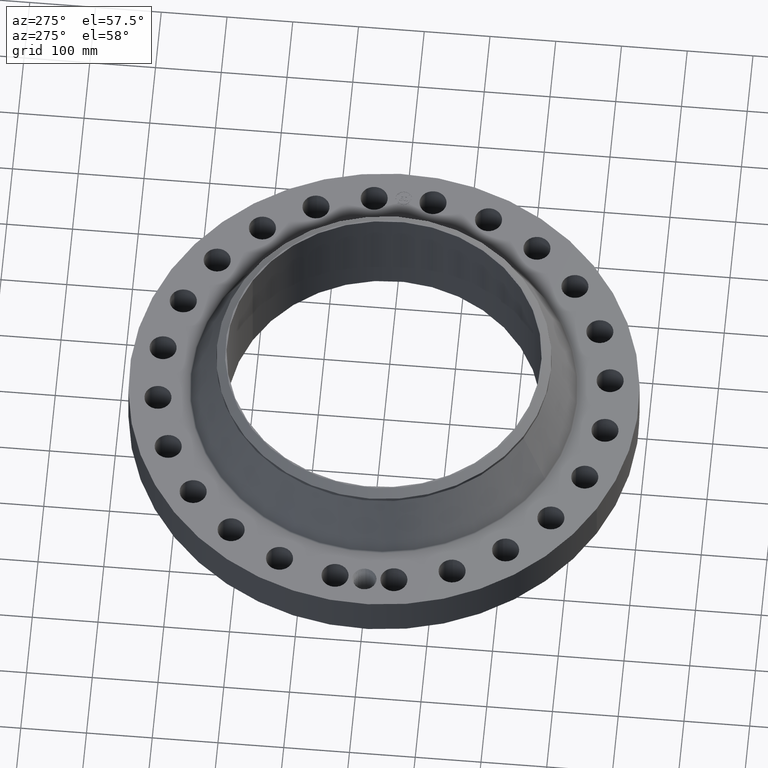
[diagram: clean part render]
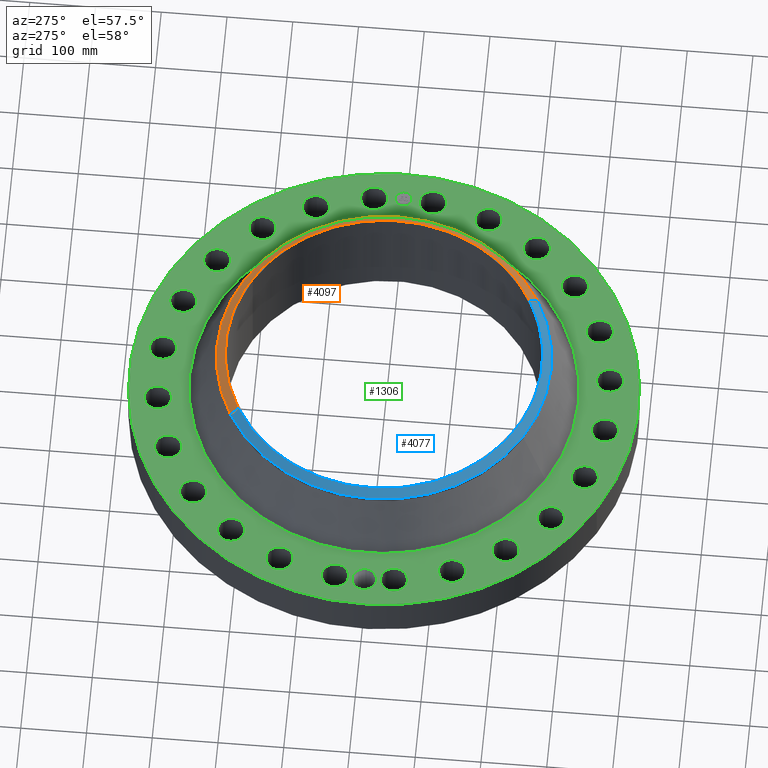
[diagram: same view with three faces highlighted in distinct colors, each labeled with its STEP entity id]
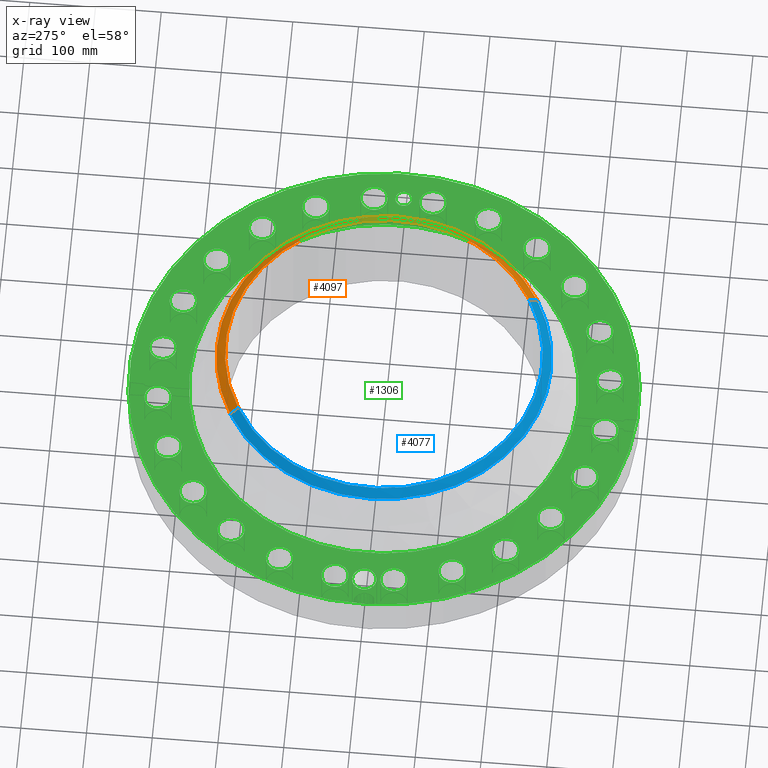
[diagram: x-ray of the same camera — body ghosted, the three highlighted faces saturated]
A machine part, auxiliary view with three faces highlighted in distinct colors.
The next image is the same camera in x-ray (body ghosted, the three faces saturated) — at least one of them is partly hidden behind the body in this view.
Their STEP definitions:

[orange] entity #4097 — the highlighted conical surface has half-angle 52.5 deg.
#3216=AXIS2_PLACEMENT_3D('Circle Axis2P3D',#3214,#3215,$) ;
#4042=AXIS2_PLACEMENT_3D('Cone Axis2P3D',#4039,#4040,#4041) ;
#4080=AXIS2_PLACEMENT_3D('Circle Axis2P3D',#4078,#4079,$) ;
#4087=AXIS2_PLACEMENT_3D('Circle Axis2P3D',#4085,#4086,$) ;
#3214=CARTESIAN_POINT('Axis2P3D Location',(0.,0.,6.87000000003)) ;
#3218=CARTESIAN_POINT('Vertex',(4.54722665854,-8.3236425663,6.87000000003)) ;
#3220=CARTESIAN_POINT('Vertex',(-4.54722665854,8.3236425663,6.87000000003)) ;
#4039=CARTESIAN_POINT('Axis2P3D Location',(0.,0.,6.87000000003)) ;
#4044=CARTESIAN_POINT('Line Origine',(4.6707410223,-8.54973409262,6.67231360853)) ;
#4048=CARTESIAN_POINT('Vertex',(4.79425538606,-8.77582561894,6.47462721704)) ;
#4051=CARTESIAN_POINT('Line Origine',(-4.6707410223,8.54973409262,6.67231360853)) ;
#4055=CARTESIAN_POINT('Vertex',(-4.79425538606,8.77582561894,6.47462721704)) ;
#4078=CARTESIAN_POINT('Axis2P3D Location',(0.,0.,6.47462721704)) ;
#4082=CARTESIAN_POINT('Vertex',(4.79425538606,8.77582561894,6.47462721704)) ;
#4085=CARTESIAN_POINT('Axis2P3D Location',(0.,0.,6.47462721704)) ;
#3215=DIRECTION('Axis2P3D Direction',(0.,0.,-0.0393700787402)) ;
#4040=DIRECTION('Axis2P3D Direction',(-0.,-0.,-0.0393700787402)) ;
#4041=DIRECTION('Axis2P3D XDirection',(-0.0188750212049,0.0345504945626,0.)) ;
#4045=DIRECTION('Vector Direction',(0.014974561121,-0.02741075027,-0.023966985394)) ;
#4052=DIRECTION('Vector Direction',(-0.014974561121,0.02741075027,-0.023966985394)) ;
#4079=DIRECTION('Axis2P3D Direction',(0.,0.,-0.0393700787402)) ;
#4086=DIRECTION('Axis2P3D Direction',(0.,0.,-0.0393700787402)) ;
#4046=VECTOR('Line Direction',#4045,0.0393700787402) ;
#4053=VECTOR('Line Direction',#4052,0.0393700787402) ;
#4091=ORIENTED_EDGE('',*,*,#4057,.F.) ;
#4092=ORIENTED_EDGE('',*,*,#3222,.F.) ;
#4093=ORIENTED_EDGE('',*,*,#4050,.T.) ;
#4094=ORIENTED_EDGE('',*,*,#4084,.T.) ;
#4095=ORIENTED_EDGE('',*,*,#4089,.F.) ;
#4097=ADVANCED_FACE('PartBody',(#4096),#4043,.T.) ;
#3217=CIRCLE('generated circle',#3216,9.48474015752) ;
#4081=CIRCLE('generated circle',#4080,10.) ;
#4088=CIRCLE('generated circle',#4087,10.) ;
#4043=CONICAL_SURFACE('Cone',#4042,9.48474015752,0.916297857297) ;
#3222=EDGE_CURVE('',#3219,#3221,#3217,.F.) ;
#4050=EDGE_CURVE('',#3219,#4049,#4047,.T.) ;
#4057=EDGE_CURVE('',#3221,#4056,#4054,.T.) ;
#4084=EDGE_CURVE('',#4049,#4083,#4081,.F.) ;
#4089=EDGE_CURVE('',#4056,#4083,#4088,.T.) ;
#4090=EDGE_LOOP('',(#4091,#4092,#4093,#4094,#4095)) ;
#4096=FACE_OUTER_BOUND('',#4090,.T.) ;
#4047=LINE('Line',#4044,#4046) ;
#4054=LINE('Line',#4051,#4053) ;
#3219=VERTEX_POINT('',#3218) ;
#3221=VERTEX_POINT('',#3220) ;
#4049=VERTEX_POINT('',#4048) ;
#4056=VERTEX_POINT('',#4055) ;
#4083=VERTEX_POINT('',#4082) ;

[blue] entity #4077 — the highlighted conical surface has half-angle 52.5 deg.
#3225=AXIS2_PLACEMENT_3D('Circle Axis2P3D',#3223,#3224,$) ;
#4042=AXIS2_PLACEMENT_3D('Cone Axis2P3D',#4039,#4040,#4041) ;
#4060=AXIS2_PLACEMENT_3D('Circle Axis2P3D',#4058,#4059,$) ;
#4067=AXIS2_PLACEMENT_3D('Circle Axis2P3D',#4065,#4066,$) ;
#3218=CARTESIAN_POINT('Vertex',(4.54722665854,-8.3236425663,6.87000000003)) ;
#3220=CARTESIAN_POINT('Vertex',(-4.54722665854,8.3236425663,6.87000000003)) ;
#3223=CARTESIAN_POINT('Axis2P3D Location',(0.,0.,6.87000000003)) ;
#4039=CARTESIAN_POINT('Axis2P3D Location',(0.,0.,6.87000000003)) ;
#4044=CARTESIAN_POINT('Line Origine',(4.6707410223,-8.54973409262,6.67231360853)) ;
#4048=CARTESIAN_POINT('Vertex',(4.79425538606,-8.77582561894,6.47462721704)) ;
#4051=CARTESIAN_POINT('Line Origine',(-4.6707410223,8.54973409262,6.67231360853)) ;
#4055=CARTESIAN_POINT('Vertex',(-4.79425538606,8.77582561894,6.47462721704)) ;
#4058=CARTESIAN_POINT('Axis2P3D Location',(0.,0.,6.47462721704)) ;
#4062=CARTESIAN_POINT('Vertex',(-4.79425538606,-8.77582561894,6.47462721704)) ;
#4065=CARTESIAN_POINT('Axis2P3D Location',(0.,0.,6.47462721704)) ;
#3224=DIRECTION('Axis2P3D Direction',(0.,0.,-0.0393700787402)) ;
#4040=DIRECTION('Axis2P3D Direction',(-0.,-0.,-0.0393700787402)) ;
#4041=DIRECTION('Axis2P3D XDirection',(-0.0188750212049,0.0345504945626,0.)) ;
#4045=DIRECTION('Vector Direction',(0.014974561121,-0.02741075027,-0.023966985394)) ;
#4052=DIRECTION('Vector Direction',(-0.014974561121,0.02741075027,-0.023966985394)) ;
#4059=DIRECTION('Axis2P3D Direction',(0.,0.,-0.0393700787402)) ;
#4066=DIRECTION('Axis2P3D Direction',(0.,0.,-0.0393700787402)) ;
#4046=VECTOR('Line Direction',#4045,0.0393700787402) ;
#4053=VECTOR('Line Direction',#4052,0.0393700787402) ;
#4071=ORIENTED_EDGE('',*,*,#4050,.F.) ;
#4072=ORIENTED_EDGE('',*,*,#3227,.F.) ;
#4073=ORIENTED_EDGE('',*,*,#4057,.T.) ;
#4074=ORIENTED_EDGE('',*,*,#4064,.T.) ;
#4075=ORIENTED_EDGE('',*,*,#4069,.F.) ;
#4077=ADVANCED_FACE('PartBody',(#4076),#4043,.T.) ;
#3226=CIRCLE('generated circle',#3225,9.48474015752) ;
#4061=CIRCLE('generated circle',#4060,10.) ;
#4068=CIRCLE('generated circle',#4067,10.) ;
#4043=CONICAL_SURFACE('Cone',#4042,9.48474015752,0.916297857297) ;
#3227=EDGE_CURVE('',#3221,#3219,#3226,.F.) ;
#4050=EDGE_CURVE('',#3219,#4049,#4047,.T.) ;
#4057=EDGE_CURVE('',#3221,#4056,#4054,.T.) ;
#4064=EDGE_CURVE('',#4056,#4063,#4061,.F.) ;
#4069=EDGE_CURVE('',#4049,#4063,#4068,.T.) ;
#4070=EDGE_LOOP('',(#4071,#4072,#4073,#4074,#4075)) ;
#4076=FACE_OUTER_BOUND('',#4070,.T.) ;
#4047=LINE('Line',#4044,#4046) ;
#4054=LINE('Line',#4051,#4053) ;
#3219=VERTEX_POINT('',#3218) ;
#3221=VERTEX_POINT('',#3220) ;
#4049=VERTEX_POINT('',#4048) ;
#4056=VERTEX_POINT('',#4055) ;
#4063=VERTEX_POINT('',#4062) ;

[green] entity #1306 — the highlighted planar face has unit normal (0, 0, -1).
#58=AXIS2_PLACEMENT_3D('Circle Axis2P3D',#56,#57,$) ;
#686=AXIS2_PLACEMENT_3D('Circle Axis2P3D',#684,#685,$) ;
#786=AXIS2_PLACEMENT_3D('Plane Axis2P3D',#783,#784,#785) ;
#822=AXIS2_PLACEMENT_3D('Circle Axis2P3D',#820,#821,$) ;
#829=AXIS2_PLACEMENT_3D('Circle Axis2P3D',#827,#828,$) ;
#840=AXIS2_PLACEMENT_3D('Circle Axis2P3D',#838,#839,$) ;
#849=AXIS2_PLACEMENT_3D('Circle Axis2P3D',#847,#848,$) ;
#858=AXIS2_PLACEMENT_3D('Circle Axis2P3D',#856,#857,$) ;
#867=AXIS2_PLACEMENT_3D('Circle Axis2P3D',#865,#866,$) ;
#876=AXIS2_PLACEMENT_3D('Circle Axis2P3D',#874,#875,$) ;
#885=AXIS2_PLACEMENT_3D('Circle Axis2P3D',#883,#884,$) ;
#894=AXIS2_PLACEMENT_3D('Circle Axis2P3D',#892,#893,$) ;
#903=AXIS2_PLACEMENT_3D('Circle Axis2P3D',#901,#902,$) ;
#912=AXIS2_PLACEMENT_3D('Circle Axis2P3D',#910,#911,$) ;
#921=AXIS2_PLACEMENT_3D('Circle Axis2P3D',#919,#920,$) ;
#930=AXIS2_PLACEMENT_3D('Circle Axis2P3D',#928,#929,$) ;
#939=AXIS2_PLACEMENT_3D('Circle Axis2P3D',#937,#938,$) ;
#948=AXIS2_PLACEMENT_3D('Circle Axis2P3D',#946,#947,$) ;
#957=AXIS2_PLACEMENT_3D('Circle Axis2P3D',#955,#956,$) ;
#966=AXIS2_PLACEMENT_3D('Circle Axis2P3D',#964,#965,$) ;
#975=AXIS2_PLACEMENT_3D('Circle Axis2P3D',#973,#974,$) ;
#984=AXIS2_PLACEMENT_3D('Circle Axis2P3D',#982,#983,$) ;
#993=AXIS2_PLACEMENT_3D('Circle Axis2P3D',#991,#992,$) ;
#1002=AXIS2_PLACEMENT_3D('Circle Axis2P3D',#1000,#1001,$) ;
#1011=AXIS2_PLACEMENT_3D('Circle Axis2P3D',#1009,#1010,$) ;
#1020=AXIS2_PLACEMENT_3D('Circle Axis2P3D',#1018,#1019,$) ;
#1029=AXIS2_PLACEMENT_3D('Circle Axis2P3D',#1027,#1028,$) ;
#1038=AXIS2_PLACEMENT_3D('Circle Axis2P3D',#1036,#1037,$) ;
#1047=AXIS2_PLACEMENT_3D('Circle Axis2P3D',#1045,#1046,$) ;
#1056=AXIS2_PLACEMENT_3D('Circle Axis2P3D',#1054,#1055,$) ;
#1065=AXIS2_PLACEMENT_3D('Circle Axis2P3D',#1063,#1064,$) ;
#1074=AXIS2_PLACEMENT_3D('Circle Axis2P3D',#1072,#1073,$) ;
#1083=AXIS2_PLACEMENT_3D('Circle Axis2P3D',#1081,#1082,$) ;
#1092=AXIS2_PLACEMENT_3D('Circle Axis2P3D',#1090,#1091,$) ;
#1101=AXIS2_PLACEMENT_3D('Circle Axis2P3D',#1099,#1100,$) ;
#1110=AXIS2_PLACEMENT_3D('Circle Axis2P3D',#1108,#1109,$) ;
#1119=AXIS2_PLACEMENT_3D('Circle Axis2P3D',#1117,#1118,$) ;
#1128=AXIS2_PLACEMENT_3D('Circle Axis2P3D',#1126,#1127,$) ;
#1137=AXIS2_PLACEMENT_3D('Circle Axis2P3D',#1135,#1136,$) ;
#1146=AXIS2_PLACEMENT_3D('Circle Axis2P3D',#1144,#1145,$) ;
#1155=AXIS2_PLACEMENT_3D('Circle Axis2P3D',#1153,#1154,$) ;
#1164=AXIS2_PLACEMENT_3D('Circle Axis2P3D',#1162,#1163,$) ;
#1173=AXIS2_PLACEMENT_3D('Circle Axis2P3D',#1171,#1172,$) ;
#1182=AXIS2_PLACEMENT_3D('Circle Axis2P3D',#1180,#1181,$) ;
#1191=AXIS2_PLACEMENT_3D('Circle Axis2P3D',#1189,#1190,$) ;
#1200=AXIS2_PLACEMENT_3D('Circle Axis2P3D',#1198,#1199,$) ;
#1209=AXIS2_PLACEMENT_3D('Circle Axis2P3D',#1207,#1208,$) ;
#1218=AXIS2_PLACEMENT_3D('Circle Axis2P3D',#1216,#1217,$) ;
#1227=AXIS2_PLACEMENT_3D('Circle Axis2P3D',#1225,#1226,$) ;
#1236=AXIS2_PLACEMENT_3D('Circle Axis2P3D',#1234,#1235,$) ;
#1245=AXIS2_PLACEMENT_3D('Circle Axis2P3D',#1243,#1244,$) ;
#1254=AXIS2_PLACEMENT_3D('Circle Axis2P3D',#1252,#1253,$) ;
#1263=AXIS2_PLACEMENT_3D('Circle Axis2P3D',#1261,#1262,$) ;
#1272=AXIS2_PLACEMENT_3D('Circle Axis2P3D',#1270,#1271,$) ;
#1281=AXIS2_PLACEMENT_3D('Circle Axis2P3D',#1279,#1280,$) ;
#1290=AXIS2_PLACEMENT_3D('Circle Axis2P3D',#1288,#1289,$) ;
#1299=AXIS2_PLACEMENT_3D('Circle Axis2P3D',#1297,#1298,$) ;
#53=CARTESIAN_POINT('Vertex',(-7.31123946374,-13.3831340689,3.00000000001)) ;
#56=CARTESIAN_POINT('Axis2P3D Location',(0.,0.,3.00000000001)) ;
#60=CARTESIAN_POINT('Vertex',(7.31123946374,13.3831340689,3.00000000001)) ;
#684=CARTESIAN_POINT('Axis2P3D Location',(0.,0.,3.00000000001)) ;
#783=CARTESIAN_POINT('Axis2P3D Location',(0.,15.2500000001,3.00000000001)) ;
#793=CARTESIAN_POINT('Control Point',(-12.7500000001,-2.23792987641E-015,3.00000000001)) ;
#794=CARTESIAN_POINT('Control Point',(-12.7522636554,0.0673684368516,3.00000000001)) ;
#795=CARTESIAN_POINT('Control Point',(-12.7620959627,0.134362451198,3.00000000001)) ;
#796=CARTESIAN_POINT('Control Point',(-12.779443189,0.199837593452,3.00000000001)) ;
#797=CARTESIAN_POINT('Control Point',(-12.8185043411,0.299840833798,3.00000000001)) ;
#798=CARTESIAN_POINT('Control Point',(-12.8743969936,0.390606345988,3.00000000001)) ;
#799=CARTESIAN_POINT('Control Point',(-12.8973886211,0.422865792682,3.00000000001)) ;
#800=CARTESIAN_POINT('Control Point',(-12.9224511221,0.453448918407,3.00000000001)) ;
#801=CARTESIAN_POINT('Control Point',(-12.9494191804,0.4821843803,3.00000000001)) ;
#802=CARTESIAN_POINT('Vertex',(-12.7500000001,-2.23792987641E-015,3.00000000001)) ;
#804=CARTESIAN_POINT('Vertex',(-12.9494191804,0.4821843803,3.00000000001)) ;
#808=CARTESIAN_POINT('Control Point',(-12.7500000001,0.,3.00000000001)) ;
#809=CARTESIAN_POINT('Control Point',(-12.7522642723,-0.0673867948276,3.00000000001)) ;
#810=CARTESIAN_POINT('Control Point',(-12.7621012981,-0.134398965041,3.00000000001)) ;
#811=CARTESIAN_POINT('Control Point',(-12.7794475726,-0.199869118488,3.00000000001)) ;
#812=CARTESIAN_POINT('Control Point',(-12.8185243821,-0.299912177351,3.00000000001)) ;
#813=CARTESIAN_POINT('Control Point',(-12.8744144436,-0.390660980928,3.00000000001)) ;
#814=CARTESIAN_POINT('Control Point',(-12.8974350804,-0.42294916695,3.00000000001)) ;
#815=CARTESIAN_POINT('Control Point',(-12.9225255534,-0.453551391386,3.00000000001)) ;
#816=CARTESIAN_POINT('Control Point',(-12.9495190389,-0.482298379648,3.00000000001)) ;
#817=CARTESIAN_POINT('Vertex',(-12.9495190389,-0.482298379648,3.00000000001)) ;
#820=CARTESIAN_POINT('Axis2P3D Location',(-13.5000000001,-1.1189649382E-014,3.00000000001)) ;
#824=CARTESIAN_POINT('Vertex',(-14.1422807375,0.350879566067,3.00000000001)) ;
#827=CARTESIAN_POINT('Axis2P3D Location',(-13.5000000001,-1.1189649382E-014,3.00000000001)) ;
#838=CARTESIAN_POINT('Axis2P3D Location',(13.3845056286,-1.76210359498,3.00000000001)) ;
#842=CARTESIAN_POINT('Vertex',(12.6736637535,-1.37376890871,3.00000000001)) ;
#844=CARTESIAN_POINT('Vertex',(14.0953475037,-2.15043828125,3.00000000001)) ;
#847=CARTESIAN_POINT('Axis2P3D Location',(13.3845056286,-1.76210359498,3.00000000001)) ;
#856=CARTESIAN_POINT('Axis2P3D Location',(0.,0.,3.00000000001)) ;
#860=CARTESIAN_POINT('Vertex',(-5.57830370885,-10.211016447,3.00000000001)) ;
#862=CARTESIAN_POINT('Vertex',(5.57830370885,10.211016447,3.00000000001)) ;
#865=CARTESIAN_POINT('Axis2P3D Location',(0.,0.,3.00000000001)) ;
#874=CARTESIAN_POINT('Axis2P3D Location',(12.472373689,-5.16622633695,3.00000000001)) ;
#878=CARTESIAN_POINT('Vertex',(13.0584858019,-5.725308255,3.00000000001)) ;
#880=CARTESIAN_POINT('Vertex',(11.886261576,-4.6071444189,3.00000000001)) ;
#883=CARTESIAN_POINT('Axis2P3D Location',(12.472373689,-5.16622633695,3.00000000001)) ;
#892=CARTESIAN_POINT('Axis2P3D Location',(10.710270094,-8.21827929165,3.00000000001)) ;
#896=CARTESIAN_POINT('Vertex',(11.1317098728,-8.9100079327,3.00000000001)) ;
#898=CARTESIAN_POINT('Vertex',(10.2888303152,-7.5265506506,3.00000000001)) ;
#901=CARTESIAN_POINT('Axis2P3D Location',(10.710270094,-8.21827929165,3.00000000001)) ;
#910=CARTESIAN_POINT('Axis2P3D Location',(8.21827929165,-10.710270094,3.00000000001)) ;
#914=CARTESIAN_POINT('Vertex',(8.44632631188,-11.4875052943,3.00000000001)) ;
#916=CARTESIAN_POINT('Vertex',(7.99023227142,-9.93303489368,3.00000000001)) ;
#919=CARTESIAN_POINT('Axis2P3D Location',(8.21827929165,-10.710270094,3.00000000001)) ;
#928=CARTESIAN_POINT('Axis2P3D Location',(5.16622633695,-12.472373689,3.00000000001)) ;
#932=CARTESIAN_POINT('Vertex',(5.18533957104,-13.282148154,3.00000000001)) ;
#934=CARTESIAN_POINT('Vertex',(5.14711310286,-11.6625992239,3.00000000001)) ;
#937=CARTESIAN_POINT('Axis2P3D Location',(5.16622633695,-12.472373689,3.00000000001)) ;
#946=CARTESIAN_POINT('Axis2P3D Location',(1.76210359498,-13.3845056286,3.00000000001)) ;
#950=CARTESIAN_POINT('Vertex',(1.57098050761,-14.1716345669,3.00000000001)) ;
#952=CARTESIAN_POINT('Vertex',(1.95322668235,-12.5973766903,3.00000000001)) ;
#955=CARTESIAN_POINT('Axis2P3D Location',(1.76210359498,-13.3845056286,3.00000000001)) ;
#964=CARTESIAN_POINT('Axis2P3D Location',(-1.76210359498,-13.3845056286,3.00000000001)) ;
#968=CARTESIAN_POINT('Vertex',(-2.15043828125,-14.0953475037,3.00000000001)) ;
#970=CARTESIAN_POINT('Vertex',(-1.37376890871,-12.6736637535,3.00000000001)) ;
#973=CARTESIAN_POINT('Axis2P3D Location',(-1.76210359498,-13.3845056286,3.00000000001)) ;
#982=CARTESIAN_POINT('Axis2P3D Location',(-5.16622633695,-12.472373689,3.00000000001)) ;
#986=CARTESIAN_POINT('Vertex',(-5.725308255,-13.0584858019,3.00000000001)) ;
#988=CARTESIAN_POINT('Vertex',(-4.6071444189,-11.886261576,3.00000000001)) ;
#991=CARTESIAN_POINT('Axis2P3D Location',(-5.16622633695,-12.472373689,3.00000000001)) ;
#1000=CARTESIAN_POINT('Axis2P3D Location',(-8.21827929165,-10.710270094,3.00000000001)) ;
#1004=CARTESIAN_POINT('Vertex',(-8.9100079327,-11.1317098728,3.00000000001)) ;
#1006=CARTESIAN_POINT('Vertex',(-7.5265506506,-10.2888303152,3.00000000001)) ;
#1009=CARTESIAN_POINT('Axis2P3D Location',(-8.21827929165,-10.710270094,3.00000000001)) ;
#1018=CARTESIAN_POINT('Axis2P3D Location',(-10.710270094,-8.21827929165,3.00000000001)) ;
#1022=CARTESIAN_POINT('Vertex',(-11.4875052943,-8.44632631188,3.00000000001)) ;
#1024=CARTESIAN_POINT('Vertex',(-9.93303489368,-7.99023227142,3.00000000001)) ;
#1027=CARTESIAN_POINT('Axis2P3D Location',(-10.710270094,-8.21827929165,3.00000000001)) ;
#1036=CARTESIAN_POINT('Axis2P3D Location',(-12.472373689,-5.16622633695,3.00000000001)) ;
#1040=CARTESIAN_POINT('Vertex',(-13.282148154,-5.18533957104,3.00000000001)) ;
#1042=CARTESIAN_POINT('Vertex',(-11.6625992239,-5.14711310286,3.00000000001)) ;
#1045=CARTESIAN_POINT('Axis2P3D Location',(-12.472373689,-5.16622633695,3.00000000001)) ;
#1054=CARTESIAN_POINT('Axis2P3D Location',(-13.3845056286,-1.76210359498,3.00000000001)) ;
#1058=CARTESIAN_POINT('Vertex',(-14.1716345669,-1.57098050761,3.00000000001)) ;
#1060=CARTESIAN_POINT('Vertex',(-12.5973766903,-1.95322668235,3.00000000001)) ;
#1063=CARTESIAN_POINT('Axis2P3D Location',(-13.3845056286,-1.76210359498,3.00000000001)) ;
#1072=CARTESIAN_POINT('Axis2P3D Location',(-13.3845056286,1.76210359498,3.00000000001)) ;
#1076=CARTESIAN_POINT('Vertex',(-14.0953475037,2.15043828125,3.00000000001)) ;
#1078=CARTESIAN_POINT('Vertex',(-12.6736637535,1.37376890871,3.00000000001)) ;
#1081=CARTESIAN_POINT('Axis2P3D Location',(-13.3845056286,1.76210359498,3.00000000001)) ;
#1090=CARTESIAN_POINT('Axis2P3D Location',(-12.472373689,5.16622633695,3.00000000001)) ;
#1094=CARTESIAN_POINT('Vertex',(-13.0584858019,5.725308255,3.00000000001)) ;
#1096=CARTESIAN_POINT('Vertex',(-11.886261576,4.6071444189,3.00000000001)) ;
#1099=CARTESIAN_POINT('Axis2P3D Location',(-12.472373689,5.16622633695,3.00000000001)) ;
#1108=CARTESIAN_POINT('Axis2P3D Location',(-10.710270094,8.21827929165,3.00000000001)) ;
#1112=CARTESIAN_POINT('Vertex',(-11.1317098728,8.9100079327,3.00000000001)) ;
#1114=CARTESIAN_POINT('Vertex',(-10.2888303152,7.5265506506,3.00000000001)) ;
#1117=CARTESIAN_POINT('Axis2P3D Location',(-10.710270094,8.21827929165,3.00000000001)) ;
#1126=CARTESIAN_POINT('Axis2P3D Location',(-8.21827929165,10.710270094,3.00000000001)) ;
#1130=CARTESIAN_POINT('Vertex',(-8.44632631188,11.4875052943,3.00000000001)) ;
#1132=CARTESIAN_POINT('Vertex',(-7.99023227142,9.93303489368,3.00000000001)) ;
#1135=CARTESIAN_POINT('Axis2P3D Location',(-8.21827929165,10.710270094,3.00000000001)) ;
#1144=CARTESIAN_POINT('Axis2P3D Location',(-5.16622633695,12.472373689,3.00000000001)) ;
#1148=CARTESIAN_POINT('Vertex',(-5.18533957104,13.282148154,3.00000000001)) ;
#1150=CARTESIAN_POINT('Vertex',(-5.14711310286,11.6625992239,3.00000000001)) ;
#1153=CARTESIAN_POINT('Axis2P3D Location',(-5.16622633695,12.472373689,3.00000000001)) ;
#1162=CARTESIAN_POINT('Axis2P3D Location',(-1.76210359498,13.3845056286,3.00000000001)) ;
#1166=CARTESIAN_POINT('Vertex',(-1.57098050761,14.1716345669,3.00000000001)) ;
#1168=CARTESIAN_POINT('Vertex',(-1.95322668235,12.5973766903,3.00000000001)) ;
#1171=CARTESIAN_POINT('Axis2P3D Location',(-1.76210359498,13.3845056286,3.00000000001)) ;
#1180=CARTESIAN_POINT('Axis2P3D Location',(1.76210359498,13.3845056286,3.00000000001)) ;
#1184=CARTESIAN_POINT('Vertex',(2.15043828125,14.0953475037,3.00000000001)) ;
#1186=CARTESIAN_POINT('Vertex',(1.37376890871,12.6736637535,3.00000000001)) ;
#1189=CARTESIAN_POINT('Axis2P3D Location',(1.76210359498,13.3845056286,3.00000000001)) ;
#1198=CARTESIAN_POINT('Axis2P3D Location',(5.16622633695,12.472373689,3.00000000001)) ;
#1202=CARTESIAN_POINT('Vertex',(5.725308255,13.0584858019,3.00000000001)) ;
#1204=CARTESIAN_POINT('Vertex',(4.6071444189,11.886261576,3.00000000001)) ;
#1207=CARTESIAN_POINT('Axis2P3D Location',(5.16622633695,12.472373689,3.00000000001)) ;
#1216=CARTESIAN_POINT('Axis2P3D Location',(8.21827929165,10.710270094,3.00000000001)) ;
#1220=CARTESIAN_POINT('Vertex',(8.9100079327,11.1317098728,3.00000000001)) ;
#1222=CARTESIAN_POINT('Vertex',(7.5265506506,10.2888303152,3.00000000001)) ;
#1225=CARTESIAN_POINT('Axis2P3D Location',(8.21827929165,10.710270094,3.00000000001)) ;
#1234=CARTESIAN_POINT('Axis2P3D Location',(10.710270094,8.21827929165,3.00000000001)) ;
#1238=CARTESIAN_POINT('Vertex',(11.4875052943,8.44632631188,3.00000000001)) ;
#1240=CARTESIAN_POINT('Vertex',(9.93303489368,7.99023227142,3.00000000001)) ;
#1243=CARTESIAN_POINT('Axis2P3D Location',(10.710270094,8.21827929165,3.00000000001)) ;
#1252=CARTESIAN_POINT('Axis2P3D Location',(12.472373689,5.16622633695,3.00000000001)) ;
#1256=CARTESIAN_POINT('Vertex',(13.282148154,5.18533957104,3.00000000001)) ;
#1258=CARTESIAN_POINT('Vertex',(11.6625992239,5.14711310286,3.00000000001)) ;
#1261=CARTESIAN_POINT('Axis2P3D Location',(12.472373689,5.16622633695,3.00000000001)) ;
#1270=CARTESIAN_POINT('Axis2P3D Location',(13.3845056286,1.76210359498,3.00000000001)) ;
#1274=CARTESIAN_POINT('Vertex',(14.1716345669,1.57098050761,3.00000000001)) ;
#1276=CARTESIAN_POINT('Vertex',(12.5973766903,1.95322668235,3.00000000001)) ;
#1279=CARTESIAN_POINT('Axis2P3D Location',(13.3845056286,1.76210359498,3.00000000001)) ;
#1288=CARTESIAN_POINT('Axis2P3D Location',(13.5000000001,0.,3.00000000001)) ;
#1292=CARTESIAN_POINT('Vertex',(13.5000000001,0.499999995002,3.00000000001)) ;
#1294=CARTESIAN_POINT('Vertex',(13.5000000001,-0.499999995002,3.00000000001)) ;
#1297=CARTESIAN_POINT('Axis2P3D Location',(13.5000000001,0.,3.00000000001)) ;
#57=DIRECTION('Axis2P3D Direction',(0.,0.,-0.0393700787402)) ;
#685=DIRECTION('Axis2P3D Direction',(0.,0.,-0.0393700787402)) ;
#784=DIRECTION('Axis2P3D Direction',(0.,0.,-0.0393700787402)) ;
#785=DIRECTION('Axis2P3D XDirection',(0.0393700787402,0.,0.)) ;
#821=DIRECTION('Axis2P3D Direction',(0.,0.,-0.0393700787402)) ;
#828=DIRECTION('Axis2P3D Direction',(0.,0.,-0.0393700787402)) ;
#839=DIRECTION('Axis2P3D Direction',(0.,0.,-0.0393700787402)) ;
#848=DIRECTION('Axis2P3D Direction',(0.,0.,-0.0393700787402)) ;
#857=DIRECTION('Axis2P3D Direction',(0.,0.,-0.0393700787402)) ;
#866=DIRECTION('Axis2P3D Direction',(0.,0.,-0.0393700787402)) ;
#875=DIRECTION('Axis2P3D Direction',(0.,0.,-0.0393700787402)) ;
#884=DIRECTION('Axis2P3D Direction',(0.,0.,-0.0393700787402)) ;
#893=DIRECTION('Axis2P3D Direction',(0.,0.,-0.0393700787402)) ;
#902=DIRECTION('Axis2P3D Direction',(0.,0.,-0.0393700787402)) ;
#911=DIRECTION('Axis2P3D Direction',(0.,0.,-0.0393700787402)) ;
#920=DIRECTION('Axis2P3D Direction',(0.,0.,-0.0393700787402)) ;
#929=DIRECTION('Axis2P3D Direction',(0.,0.,-0.0393700787402)) ;
#938=DIRECTION('Axis2P3D Direction',(0.,0.,-0.0393700787402)) ;
#947=DIRECTION('Axis2P3D Direction',(0.,0.,-0.0393700787402)) ;
#956=DIRECTION('Axis2P3D Direction',(0.,0.,-0.0393700787402)) ;
#965=DIRECTION('Axis2P3D Direction',(0.,0.,-0.0393700787402)) ;
#974=DIRECTION('Axis2P3D Direction',(0.,0.,-0.0393700787402)) ;
#983=DIRECTION('Axis2P3D Direction',(0.,0.,-0.0393700787402)) ;
#992=DIRECTION('Axis2P3D Direction',(0.,0.,-0.0393700787402)) ;
#1001=DIRECTION('Axis2P3D Direction',(0.,0.,-0.0393700787402)) ;
#1010=DIRECTION('Axis2P3D Direction',(0.,0.,-0.0393700787402)) ;
#1019=DIRECTION('Axis2P3D Direction',(0.,0.,-0.0393700787402)) ;
#1028=DIRECTION('Axis2P3D Direction',(0.,0.,-0.0393700787402)) ;
#1037=DIRECTION('Axis2P3D Direction',(0.,0.,-0.0393700787402)) ;
#1046=DIRECTION('Axis2P3D Direction',(0.,0.,-0.0393700787402)) ;
#1055=DIRECTION('Axis2P3D Direction',(0.,0.,-0.0393700787402)) ;
#1064=DIRECTION('Axis2P3D Direction',(0.,0.,-0.0393700787402)) ;
#1073=DIRECTION('Axis2P3D Direction',(0.,0.,-0.0393700787402)) ;
#1082=DIRECTION('Axis2P3D Direction',(0.,0.,-0.0393700787402)) ;
#1091=DIRECTION('Axis2P3D Direction',(0.,0.,-0.0393700787402)) ;
#1100=DIRECTION('Axis2P3D Direction',(0.,0.,-0.0393700787402)) ;
#1109=DIRECTION('Axis2P3D Direction',(0.,0.,-0.0393700787402)) ;
#1118=DIRECTION('Axis2P3D Direction',(0.,0.,-0.0393700787402)) ;
#1127=DIRECTION('Axis2P3D Direction',(0.,0.,-0.0393700787402)) ;
#1136=DIRECTION('Axis2P3D Direction',(0.,0.,-0.0393700787402)) ;
#1145=DIRECTION('Axis2P3D Direction',(0.,0.,-0.0393700787402)) ;
#1154=DIRECTION('Axis2P3D Direction',(0.,0.,-0.0393700787402)) ;
#1163=DIRECTION('Axis2P3D Direction',(0.,0.,-0.0393700787402)) ;
#1172=DIRECTION('Axis2P3D Direction',(0.,0.,-0.0393700787402)) ;
#1181=DIRECTION('Axis2P3D Direction',(0.,0.,-0.0393700787402)) ;
#1190=DIRECTION('Axis2P3D Direction',(0.,0.,-0.0393700787402)) ;
#1199=DIRECTION('Axis2P3D Direction',(0.,0.,-0.0393700787402)) ;
#1208=DIRECTION('Axis2P3D Direction',(0.,0.,-0.0393700787402)) ;
#1217=DIRECTION('Axis2P3D Direction',(0.,0.,-0.0393700787402)) ;
#1226=DIRECTION('Axis2P3D Direction',(0.,0.,-0.0393700787402)) ;
#1235=DIRECTION('Axis2P3D Direction',(0.,0.,-0.0393700787402)) ;
#1244=DIRECTION('Axis2P3D Direction',(0.,0.,-0.0393700787402)) ;
#1253=DIRECTION('Axis2P3D Direction',(0.,0.,-0.0393700787402)) ;
#1262=DIRECTION('Axis2P3D Direction',(0.,0.,-0.0393700787402)) ;
#1271=DIRECTION('Axis2P3D Direction',(0.,0.,-0.0393700787402)) ;
#1280=DIRECTION('Axis2P3D Direction',(0.,0.,-0.0393700787402)) ;
#1289=DIRECTION('Axis2P3D Direction',(0.,0.,-0.0393700787402)) ;
#1298=DIRECTION('Axis2P3D Direction',(0.,0.,-0.0393700787402)) ;
#789=ORIENTED_EDGE('',*,*,#688,.F.) ;
#790=ORIENTED_EDGE('',*,*,#62,.F.) ;
#833=ORIENTED_EDGE('',*,*,#806,.F.) ;
#834=ORIENTED_EDGE('',*,*,#819,.T.) ;
#835=ORIENTED_EDGE('',*,*,#826,.T.) ;
#836=ORIENTED_EDGE('',*,*,#831,.T.) ;
#853=ORIENTED_EDGE('',*,*,#846,.T.) ;
#854=ORIENTED_EDGE('',*,*,#851,.T.) ;
#871=ORIENTED_EDGE('',*,*,#864,.T.) ;
#872=ORIENTED_EDGE('',*,*,#869,.T.) ;
#889=ORIENTED_EDGE('',*,*,#882,.T.) ;
#890=ORIENTED_EDGE('',*,*,#887,.T.) ;
#907=ORIENTED_EDGE('',*,*,#900,.T.) ;
#908=ORIENTED_EDGE('',*,*,#905,.T.) ;
#925=ORIENTED_EDGE('',*,*,#918,.T.) ;
#926=ORIENTED_EDGE('',*,*,#923,.T.) ;
#943=ORIENTED_EDGE('',*,*,#936,.T.) ;
#944=ORIENTED_EDGE('',*,*,#941,.T.) ;
#961=ORIENTED_EDGE('',*,*,#954,.T.) ;
#962=ORIENTED_EDGE('',*,*,#959,.T.) ;
#979=ORIENTED_EDGE('',*,*,#972,.T.) ;
#980=ORIENTED_EDGE('',*,*,#977,.T.) ;
#997=ORIENTED_EDGE('',*,*,#990,.T.) ;
#998=ORIENTED_EDGE('',*,*,#995,.T.) ;
#1015=ORIENTED_EDGE('',*,*,#1008,.T.) ;
#1016=ORIENTED_EDGE('',*,*,#1013,.T.) ;
#1033=ORIENTED_EDGE('',*,*,#1026,.T.) ;
#1034=ORIENTED_EDGE('',*,*,#1031,.T.) ;
#1051=ORIENTED_EDGE('',*,*,#1044,.T.) ;
#1052=ORIENTED_EDGE('',*,*,#1049,.T.) ;
#1069=ORIENTED_EDGE('',*,*,#1062,.T.) ;
#1070=ORIENTED_EDGE('',*,*,#1067,.T.) ;
#1087=ORIENTED_EDGE('',*,*,#1080,.T.) ;
#1088=ORIENTED_EDGE('',*,*,#1085,.T.) ;
#1105=ORIENTED_EDGE('',*,*,#1098,.T.) ;
#1106=ORIENTED_EDGE('',*,*,#1103,.T.) ;
#1123=ORIENTED_EDGE('',*,*,#1116,.T.) ;
#1124=ORIENTED_EDGE('',*,*,#1121,.T.) ;
#1141=ORIENTED_EDGE('',*,*,#1134,.T.) ;
#1142=ORIENTED_EDGE('',*,*,#1139,.T.) ;
#1159=ORIENTED_EDGE('',*,*,#1152,.T.) ;
#1160=ORIENTED_EDGE('',*,*,#1157,.T.) ;
#1177=ORIENTED_EDGE('',*,*,#1170,.T.) ;
#1178=ORIENTED_EDGE('',*,*,#1175,.T.) ;
#1195=ORIENTED_EDGE('',*,*,#1188,.T.) ;
#1196=ORIENTED_EDGE('',*,*,#1193,.T.) ;
#1213=ORIENTED_EDGE('',*,*,#1206,.T.) ;
#1214=ORIENTED_EDGE('',*,*,#1211,.T.) ;
#1231=ORIENTED_EDGE('',*,*,#1224,.T.) ;
#1232=ORIENTED_EDGE('',*,*,#1229,.T.) ;
#1249=ORIENTED_EDGE('',*,*,#1242,.T.) ;
#1250=ORIENTED_EDGE('',*,*,#1247,.T.) ;
#1267=ORIENTED_EDGE('',*,*,#1260,.T.) ;
#1268=ORIENTED_EDGE('',*,*,#1265,.T.) ;
#1285=ORIENTED_EDGE('',*,*,#1278,.T.) ;
#1286=ORIENTED_EDGE('',*,*,#1283,.T.) ;
#1303=ORIENTED_EDGE('',*,*,#1296,.T.) ;
#1304=ORIENTED_EDGE('',*,*,#1301,.T.) ;
#837=FACE_BOUND('',#832,.T.) ;
#855=FACE_BOUND('',#852,.T.) ;
#873=FACE_BOUND('',#870,.T.) ;
#891=FACE_BOUND('',#888,.T.) ;
#909=FACE_BOUND('',#906,.T.) ;
#927=FACE_BOUND('',#924,.T.) ;
#945=FACE_BOUND('',#942,.T.) ;
#963=FACE_BOUND('',#960,.T.) ;
#981=FACE_BOUND('',#978,.T.) ;
#999=FACE_BOUND('',#996,.T.) ;
#1017=FACE_BOUND('',#1014,.T.) ;
#1035=FACE_BOUND('',#1032,.T.) ;
#1053=FACE_BOUND('',#1050,.T.) ;
#1071=FACE_BOUND('',#1068,.T.) ;
#1089=FACE_BOUND('',#1086,.T.) ;
#1107=FACE_BOUND('',#1104,.T.) ;
#1125=FACE_BOUND('',#1122,.T.) ;
#1143=FACE_BOUND('',#1140,.T.) ;
#1161=FACE_BOUND('',#1158,.T.) ;
#1179=FACE_BOUND('',#1176,.T.) ;
#1197=FACE_BOUND('',#1194,.T.) ;
#1215=FACE_BOUND('',#1212,.T.) ;
#1233=FACE_BOUND('',#1230,.T.) ;
#1251=FACE_BOUND('',#1248,.T.) ;
#1269=FACE_BOUND('',#1266,.T.) ;
#1287=FACE_BOUND('',#1284,.T.) ;
#1305=FACE_BOUND('',#1302,.T.) ;
#1306=ADVANCED_FACE('PartBody',(#791,#837,#855,#873,#891,#909,#927,#945,#963,#981,#999,#1017,#1035,#1053,#1071,#1089,#1107,#1125,#1143,#1161,#1179,#1197,#1215,#1233,#1251,#1269,#1287,#1305),#787,.F.) ;
#792=B_SPLINE_CURVE_WITH_KNOTS('',5,(#793,#794,#795,#796,#797,#798,#799,#800,#801),.UNSPECIFIED.,.F.,.U.,(6,3,6),(0.,11.8008760648,18.7839626093),.UNSPECIFIED.) ;
#807=B_SPLINE_CURVE_WITH_KNOTS('',5,(#808,#809,#810,#811,#812,#813,#814,#815,#816),.UNSPECIFIED.,.F.,.U.,(6,3,6),(0.,11.8040918171,18.8043456012),.UNSPECIFIED.) ;
#59=CIRCLE('generated circle',#58,15.2500000001) ;
#687=CIRCLE('generated circle',#686,15.2500000001) ;
#823=CIRCLE('generated circle',#822,0.731875000003) ;
#830=CIRCLE('generated circle',#829,0.731875000003) ;
#841=CIRCLE('generated circle',#840,0.810000000003) ;
#850=CIRCLE('generated circle',#849,0.810000000003) ;
#859=CIRCLE('generated circle',#858,11.6353912332) ;
#868=CIRCLE('generated circle',#867,11.6353912332) ;
#877=CIRCLE('generated circle',#876,0.810000000003) ;
#886=CIRCLE('generated circle',#885,0.810000000003) ;
#895=CIRCLE('generated circle',#894,0.810000000003) ;
#904=CIRCLE('generated circle',#903,0.810000000003) ;
#913=CIRCLE('generated circle',#912,0.810000000003) ;
#922=CIRCLE('generated circle',#921,0.810000000003) ;
#931=CIRCLE('generated circle',#930,0.810000000003) ;
#940=CIRCLE('generated circle',#939,0.810000000003) ;
#949=CIRCLE('generated circle',#948,0.810000000003) ;
#958=CIRCLE('generated circle',#957,0.810000000003) ;
#967=CIRCLE('generated circle',#966,0.810000000003) ;
#976=CIRCLE('generated circle',#975,0.810000000003) ;
#985=CIRCLE('generated circle',#984,0.810000000003) ;
#994=CIRCLE('generated circle',#993,0.810000000003) ;
#1003=CIRCLE('generated circle',#1002,0.810000000003) ;
#1012=CIRCLE('generated circle',#1011,0.810000000003) ;
#1021=CIRCLE('generated circle',#1020,0.810000000003) ;
#1030=CIRCLE('generated circle',#1029,0.810000000003) ;
#1039=CIRCLE('generated circle',#1038,0.810000000003) ;
#1048=CIRCLE('generated circle',#1047,0.810000000003) ;
#1057=CIRCLE('generated circle',#1056,0.810000000003) ;
#1066=CIRCLE('generated circle',#1065,0.810000000003) ;
#1075=CIRCLE('generated circle',#1074,0.810000000003) ;
#1084=CIRCLE('generated circle',#1083,0.810000000003) ;
#1093=CIRCLE('generated circle',#1092,0.810000000003) ;
#1102=CIRCLE('generated circle',#1101,0.810000000003) ;
#1111=CIRCLE('generated circle',#1110,0.810000000003) ;
#1120=CIRCLE('generated circle',#1119,0.810000000003) ;
#1129=CIRCLE('generated circle',#1128,0.810000000003) ;
#1138=CIRCLE('generated circle',#1137,0.810000000003) ;
#1147=CIRCLE('generated circle',#1146,0.810000000003) ;
#1156=CIRCLE('generated circle',#1155,0.810000000003) ;
#1165=CIRCLE('generated circle',#1164,0.810000000003) ;
#1174=CIRCLE('generated circle',#1173,0.810000000003) ;
#1183=CIRCLE('generated circle',#1182,0.810000000003) ;
#1192=CIRCLE('generated circle',#1191,0.810000000003) ;
#1201=CIRCLE('generated circle',#1200,0.810000000003) ;
#1210=CIRCLE('generated circle',#1209,0.810000000003) ;
#1219=CIRCLE('generated circle',#1218,0.810000000003) ;
#1228=CIRCLE('generated circle',#1227,0.810000000003) ;
#1237=CIRCLE('generated circle',#1236,0.810000000003) ;
#1246=CIRCLE('generated circle',#1245,0.810000000003) ;
#1255=CIRCLE('generated circle',#1254,0.810000000003) ;
#1264=CIRCLE('generated circle',#1263,0.810000000003) ;
#1273=CIRCLE('generated circle',#1272,0.810000000003) ;
#1282=CIRCLE('generated circle',#1281,0.810000000003) ;
#1291=CIRCLE('generated circle',#1290,0.499999995002) ;
#1300=CIRCLE('generated circle',#1299,0.499999995002) ;
#62=EDGE_CURVE('',#54,#61,#59,.T.) ;
#688=EDGE_CURVE('',#61,#54,#687,.T.) ;
#806=EDGE_CURVE('',#803,#805,#792,.T.) ;
#819=EDGE_CURVE('',#803,#818,#807,.T.) ;
#826=EDGE_CURVE('',#818,#825,#823,.T.) ;
#831=EDGE_CURVE('',#825,#805,#830,.T.) ;
#846=EDGE_CURVE('',#843,#845,#841,.T.) ;
#851=EDGE_CURVE('',#845,#843,#850,.T.) ;
#864=EDGE_CURVE('',#861,#863,#859,.T.) ;
#869=EDGE_CURVE('',#863,#861,#868,.T.) ;
#882=EDGE_CURVE('',#879,#881,#877,.T.) ;
#887=EDGE_CURVE('',#881,#879,#886,.T.) ;
#900=EDGE_CURVE('',#897,#899,#895,.T.) ;
#905=EDGE_CURVE('',#899,#897,#904,.T.) ;
#918=EDGE_CURVE('',#915,#917,#913,.T.) ;
#923=EDGE_CURVE('',#917,#915,#922,.T.) ;
#936=EDGE_CURVE('',#933,#935,#931,.T.) ;
#941=EDGE_CURVE('',#935,#933,#940,.T.) ;
#954=EDGE_CURVE('',#951,#953,#949,.T.) ;
#959=EDGE_CURVE('',#953,#951,#958,.T.) ;
#972=EDGE_CURVE('',#969,#971,#967,.T.) ;
#977=EDGE_CURVE('',#971,#969,#976,.T.) ;
#990=EDGE_CURVE('',#987,#989,#985,.T.) ;
#995=EDGE_CURVE('',#989,#987,#994,.T.) ;
#1008=EDGE_CURVE('',#1005,#1007,#1003,.T.) ;
#1013=EDGE_CURVE('',#1007,#1005,#1012,.T.) ;
#1026=EDGE_CURVE('',#1023,#1025,#1021,.T.) ;
#1031=EDGE_CURVE('',#1025,#1023,#1030,.T.) ;
#1044=EDGE_CURVE('',#1041,#1043,#1039,.T.) ;
#1049=EDGE_CURVE('',#1043,#1041,#1048,.T.) ;
#1062=EDGE_CURVE('',#1059,#1061,#1057,.T.) ;
#1067=EDGE_CURVE('',#1061,#1059,#1066,.T.) ;
#1080=EDGE_CURVE('',#1077,#1079,#1075,.T.) ;
#1085=EDGE_CURVE('',#1079,#1077,#1084,.T.) ;
#1098=EDGE_CURVE('',#1095,#1097,#1093,.T.) ;
#1103=EDGE_CURVE('',#1097,#1095,#1102,.T.) ;
#1116=EDGE_CURVE('',#1113,#1115,#1111,.T.) ;
#1121=EDGE_CURVE('',#1115,#1113,#1120,.T.) ;
#1134=EDGE_CURVE('',#1131,#1133,#1129,.T.) ;
#1139=EDGE_CURVE('',#1133,#1131,#1138,.T.) ;
#1152=EDGE_CURVE('',#1149,#1151,#1147,.T.) ;
#1157=EDGE_CURVE('',#1151,#1149,#1156,.T.) ;
#1170=EDGE_CURVE('',#1167,#1169,#1165,.T.) ;
#1175=EDGE_CURVE('',#1169,#1167,#1174,.T.) ;
#1188=EDGE_CURVE('',#1185,#1187,#1183,.T.) ;
#1193=EDGE_CURVE('',#1187,#1185,#1192,.T.) ;
#1206=EDGE_CURVE('',#1203,#1205,#1201,.T.) ;
#1211=EDGE_CURVE('',#1205,#1203,#1210,.T.) ;
#1224=EDGE_CURVE('',#1221,#1223,#1219,.T.) ;
#1229=EDGE_CURVE('',#1223,#1221,#1228,.T.) ;
#1242=EDGE_CURVE('',#1239,#1241,#1237,.T.) ;
#1247=EDGE_CURVE('',#1241,#1239,#1246,.T.) ;
#1260=EDGE_CURVE('',#1257,#1259,#1255,.T.) ;
#1265=EDGE_CURVE('',#1259,#1257,#1264,.T.) ;
#1278=EDGE_CURVE('',#1275,#1277,#1273,.T.) ;
#1283=EDGE_CURVE('',#1277,#1275,#1282,.T.) ;
#1296=EDGE_CURVE('',#1293,#1295,#1291,.T.) ;
#1301=EDGE_CURVE('',#1295,#1293,#1300,.T.) ;
#788=EDGE_LOOP('',(#789,#790)) ;
#832=EDGE_LOOP('',(#833,#834,#835,#836)) ;
#852=EDGE_LOOP('',(#853,#854)) ;
#870=EDGE_LOOP('',(#871,#872)) ;
#888=EDGE_LOOP('',(#889,#890)) ;
#906=EDGE_LOOP('',(#907,#908)) ;
#924=EDGE_LOOP('',(#925,#926)) ;
#942=EDGE_LOOP('',(#943,#944)) ;
#960=EDGE_LOOP('',(#961,#962)) ;
#978=EDGE_LOOP('',(#979,#980)) ;
#996=EDGE_LOOP('',(#997,#998)) ;
#1014=EDGE_LOOP('',(#1015,#1016)) ;
#1032=EDGE_LOOP('',(#1033,#1034)) ;
#1050=EDGE_LOOP('',(#1051,#1052)) ;
#1068=EDGE_LOOP('',(#1069,#1070)) ;
#1086=EDGE_LOOP('',(#1087,#1088)) ;
#1104=EDGE_LOOP('',(#1105,#1106)) ;
#1122=EDGE_LOOP('',(#1123,#1124)) ;
#1140=EDGE_LOOP('',(#1141,#1142)) ;
#1158=EDGE_LOOP('',(#1159,#1160)) ;
#1176=EDGE_LOOP('',(#1177,#1178)) ;
#1194=EDGE_LOOP('',(#1195,#1196)) ;
#1212=EDGE_LOOP('',(#1213,#1214)) ;
#1230=EDGE_LOOP('',(#1231,#1232)) ;
#1248=EDGE_LOOP('',(#1249,#1250)) ;
#1266=EDGE_LOOP('',(#1267,#1268)) ;
#1284=EDGE_LOOP('',(#1285,#1286)) ;
#1302=EDGE_LOOP('',(#1303,#1304)) ;
#791=FACE_OUTER_BOUND('',#788,.T.) ;
#787=PLANE('',#786) ;
#54=VERTEX_POINT('',#53) ;
#61=VERTEX_POINT('',#60) ;
#803=VERTEX_POINT('',#802) ;
#805=VERTEX_POINT('',#804) ;
#818=VERTEX_POINT('',#817) ;
#825=VERTEX_POINT('',#824) ;
#843=VERTEX_POINT('',#842) ;
#845=VERTEX_POINT('',#844) ;
#861=VERTEX_POINT('',#860) ;
#863=VERTEX_POINT('',#862) ;
#879=VERTEX_POINT('',#878) ;
#881=VERTEX_POINT('',#880) ;
#897=VERTEX_POINT('',#896) ;
#899=VERTEX_POINT('',#898) ;
#915=VERTEX_POINT('',#914) ;
#917=VERTEX_POINT('',#916) ;
#933=VERTEX_POINT('',#932) ;
#935=VERTEX_POINT('',#934) ;
#951=VERTEX_POINT('',#950) ;
#953=VERTEX_POINT('',#952) ;
#969=VERTEX_POINT('',#968) ;
#971=VERTEX_POINT('',#970) ;
#987=VERTEX_POINT('',#986) ;
#989=VERTEX_POINT('',#988) ;
#1005=VERTEX_POINT('',#1004) ;
#1007=VERTEX_POINT('',#1006) ;
#1023=VERTEX_POINT('',#1022) ;
#1025=VERTEX_POINT('',#1024) ;
#1041=VERTEX_POINT('',#1040) ;
#1043=VERTEX_POINT('',#1042) ;
#1059=VERTEX_POINT('',#1058) ;
#1061=VERTEX_POINT('',#1060) ;
#1077=VERTEX_POINT('',#1076) ;
#1079=VERTEX_POINT('',#1078) ;
#1095=VERTEX_POINT('',#1094) ;
#1097=VERTEX_POINT('',#1096) ;
#1113=VERTEX_POINT('',#1112) ;
#1115=VERTEX_POINT('',#1114) ;
#1131=VERTEX_POINT('',#1130) ;
#1133=VERTEX_POINT('',#1132) ;
#1149=VERTEX_POINT('',#1148) ;
#1151=VERTEX_POINT('',#1150) ;
#1167=VERTEX_POINT('',#1166) ;
#1169=VERTEX_POINT('',#1168) ;
#1185=VERTEX_POINT('',#1184) ;
#1187=VERTEX_POINT('',#1186) ;
#1203=VERTEX_POINT('',#1202) ;
#1205=VERTEX_POINT('',#1204) ;
#1221=VERTEX_POINT('',#1220) ;
#1223=VERTEX_POINT('',#1222) ;
#1239=VERTEX_POINT('',#1238) ;
#1241=VERTEX_POINT('',#1240) ;
#1257=VERTEX_POINT('',#1256) ;
#1259=VERTEX_POINT('',#1258) ;
#1275=VERTEX_POINT('',#1274) ;
#1277=VERTEX_POINT('',#1276) ;
#1293=VERTEX_POINT('',#1292) ;
#1295=VERTEX_POINT('',#1294) ;